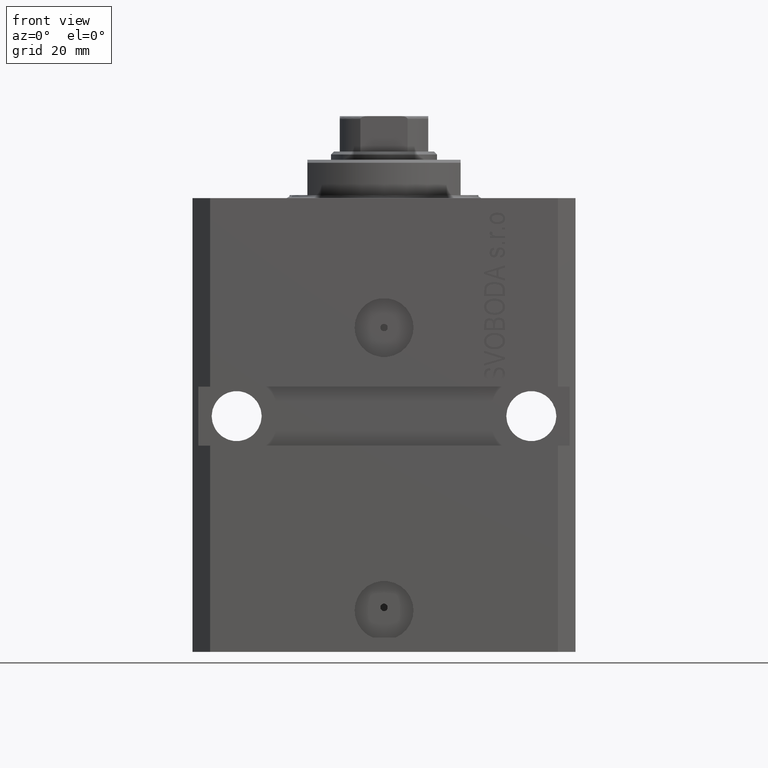
[diagram: clean part render]
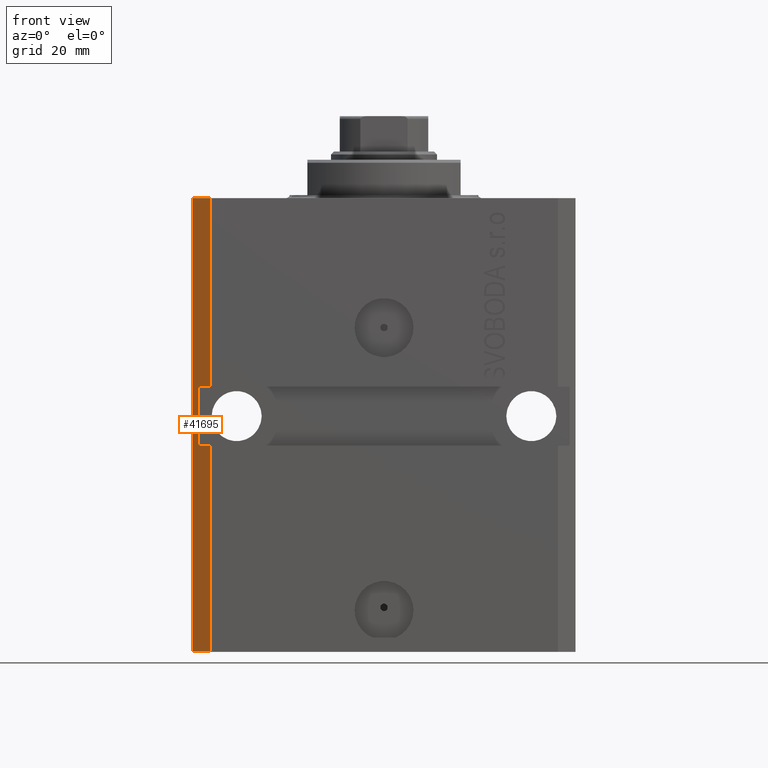
[diagram: same view with one face highlighted and labeled with its STEP entity id]
A machine part, front view. The second image highlights one B-rep face of the part: STEP entity #41695.
In plain terms, the highlighted planar face has unit normal (-0.7071, -0.7071, 0).
Its self-contained STEP definition (entity closure, byte-faithful):
#622 = VERTEX_POINT ( 'NONE', #4317 ) ;
#980 = ORIENTED_EDGE ( 'NONE', *, *, #5065, .F. ) ;
#1136 = LINE ( 'NONE', #4285, #1965 ) ;
#1140 = ORIENTED_EDGE ( 'NONE', *, *, #16398, .F. ) ;
#1142 = DIRECTION ( 'NONE',  ( 0.000000000000000000, 0.000000000000000000, 1.000000000000000000 ) ) ;
#1965 = VECTOR ( 'NONE', #15854, 1000.000000000000000 ) ;
#2547 = EDGE_CURVE ( 'NONE', #27268, #34506, #19101, .T. ) ;
#3003 = EDGE_CURVE ( 'NONE', #25565, #27268, #20941, .T. ) ;
#3828 = EDGE_CURVE ( 'NONE', #21073, #622, #37578, .T. ) ;
#4285 = CARTESIAN_POINT ( 'NONE',  ( -29.49999999999650413, -22.49999999999949907, -77.00000000000000000 ) ) ;
#4286 = CARTESIAN_POINT ( 'NONE',  ( -29.49999999999650413, -22.49999999999949907, 0.000000000000000000 ) ) ;
#4317 = CARTESIAN_POINT ( 'NONE',  ( -31.49999999999650413, -20.49999999999950262, -32.00000000000000000 ) ) ;
#4465 = EDGE_CURVE ( 'NONE', #36175, #7276, #26518, .T. ) ;
#4484 = DIRECTION ( 'NONE',  ( 0.7071067811865474617, -0.7071067811865474617, 7.548521435980497974E-17 ) ) ;
#4530 = CARTESIAN_POINT ( 'NONE',  ( -31.49999999999650413, -20.49999999999950262, -77.00000000000000000 ) ) ;
#5065 = EDGE_CURVE ( 'NONE', #21073, #34506, #11724, .T. ) ;
#6263 = DIRECTION ( 'NONE',  ( 0.7071067811865474617, -0.7071067811865474617, 0.000000000000000000 ) ) ;
#6458 = CARTESIAN_POINT ( 'NONE',  ( -29.49999999999650058, -22.49999999999949907, -32.00000000000000000 ) ) ;
#6642 = VECTOR ( 'NONE', #41962, 1000.000000000000114 ) ;
#6729 = DIRECTION ( 'NONE',  ( 0.7071067811865474617, -0.7071067811865474617, 0.000000000000000000 ) ) ;
#7276 = VERTEX_POINT ( 'NONE', #4286 ) ;
#7976 = CARTESIAN_POINT ( 'NONE',  ( -32.49999999999650413, -19.49999999999949907, 0.000000000000000000 ) ) ;
#8254 = CARTESIAN_POINT ( 'NONE',  ( -29.49999999999650413, -22.49999999999949907, -77.00000000000000000 ) ) ;
#9883 = DIRECTION ( 'NONE',  ( -0.7071067811865475727, -0.7071067811865475727, 0.000000000000000000 ) ) ;
#10364 = VECTOR ( 'NONE', #33728, 1000.000000000000114 ) ;
#10426 = VECTOR ( 'NONE', #26808, 1000.000000000000000 ) ;
#11299 = AXIS2_PLACEMENT_3D ( 'NONE', #39318, #9883, #6263 ) ;
#11724 = LINE ( 'NONE', #44550, #39808 ) ;
#12202 = EDGE_CURVE ( 'NONE', #35946, #7276, #1136, .T. ) ;
#13707 = DIRECTION ( 'NONE',  ( 0.000000000000000000, 0.000000000000000000, 1.000000000000000000 ) ) ;
#15068 = VECTOR ( 'NONE', #6729, 1000.000000000000114 ) ;
#15854 = DIRECTION ( 'NONE',  ( 0.000000000000000000, 0.000000000000000000, 1.000000000000000000 ) ) ;
#16398 = EDGE_CURVE ( 'NONE', #25565, #36175, #42425, .T. ) ;
#16619 = VECTOR ( 'NONE', #1142, 1000.000000000000000 ) ;
#16853 = CARTESIAN_POINT ( 'NONE',  ( -32.49999999999650413, -19.49999999999949907, -77.00000000000000000 ) ) ;
#19101 = LINE ( 'NONE', #8254, #10426 ) ;
#20546 = CARTESIAN_POINT ( 'NONE',  ( -29.49999999999650413, -22.49999999999949907, -41.99999999999999289 ) ) ;
#20862 = ORIENTED_EDGE ( 'NONE', *, *, #12202, .T. ) ;
#20941 = LINE ( 'NONE', #35895, #15068 ) ;
#21073 = VERTEX_POINT ( 'NONE', #32110 ) ;
#23579 = CARTESIAN_POINT ( 'NONE',  ( -32.49999999999650413, -19.49999999999950262, -32.00000000000000000 ) ) ;
#24149 = CARTESIAN_POINT ( 'NONE',  ( -29.49999999999650413, -22.49999999999949907, -77.00000000000000000 ) ) ;
#24724 = CARTESIAN_POINT ( 'NONE',  ( -32.49999999999650413, -19.49999999999949907, 0.000000000000000000 ) ) ;
#25565 = VERTEX_POINT ( 'NONE', #46443 ) ;
#26518 = LINE ( 'NONE', #7976, #6642 ) ;
#26808 = DIRECTION ( 'NONE',  ( 0.000000000000000000, 0.000000000000000000, 1.000000000000000000 ) ) ;
#26953 = ORIENTED_EDGE ( 'NONE', *, *, #3828, .T. ) ;
#27268 = VERTEX_POINT ( 'NONE', #24149 ) ;
#27724 = ORIENTED_EDGE ( 'NONE', *, *, #38169, .F. ) ;
#28183 = FACE_OUTER_BOUND ( 'NONE', #32587, .T. ) ;
#32110 = CARTESIAN_POINT ( 'NONE',  ( -31.49999999999650413, -20.49999999999949907, -41.99999999999999289 ) ) ;
#32587 = EDGE_LOOP ( 'NONE', ( #980, #26953, #27724, #20862, #33302, #1140, #33299, #37163 ) ) ;
#33299 = ORIENTED_EDGE ( 'NONE', *, *, #3003, .T. ) ;
#33302 = ORIENTED_EDGE ( 'NONE', *, *, #4465, .F. ) ;
#33728 = DIRECTION ( 'NONE',  ( -0.7071067811865474617, 0.7071067811865474617, 7.548521435980497974E-17 ) ) ;
#34506 = VERTEX_POINT ( 'NONE', #20546 ) ;
#35895 = CARTESIAN_POINT ( 'NONE',  ( -32.49999999999650413, -19.49999999999949907, -77.00000000000000000 ) ) ;
#35946 = VERTEX_POINT ( 'NONE', #6458 ) ;
#36175 = VERTEX_POINT ( 'NONE', #24724 ) ;
#37163 = ORIENTED_EDGE ( 'NONE', *, *, #2547, .T. ) ;
#37578 = LINE ( 'NONE', #4530, #16619 ) ;
#38169 = EDGE_CURVE ( 'NONE', #35946, #622, #41690, .T. ) ;
#39318 = CARTESIAN_POINT ( 'NONE',  ( -32.49999999999650413, -19.49999999999949907, -77.00000000000000000 ) ) ;
#39808 = VECTOR ( 'NONE', #4484, 1000.000000000000114 ) ;
#41690 = LINE ( 'NONE', #23579, #10364 ) ;
#41695 = ADVANCED_FACE ( 'NONE', ( #28183 ), #42932, .T. ) ;
#41962 = DIRECTION ( 'NONE',  ( 0.7071067811865474617, -0.7071067811865474617, 0.000000000000000000 ) ) ;
#42425 = LINE ( 'NONE', #16853, #46712 ) ;
#42932 = PLANE ( 'NONE',  #11299 ) ;
#44550 = CARTESIAN_POINT ( 'NONE',  ( -32.49999999999650413, -19.49999999999949551, -41.99999999999999289 ) ) ;
#46443 = CARTESIAN_POINT ( 'NONE',  ( -32.49999999999650413, -19.49999999999949907, -77.00000000000000000 ) ) ;
#46712 = VECTOR ( 'NONE', #13707, 1000.000000000000000 ) ;